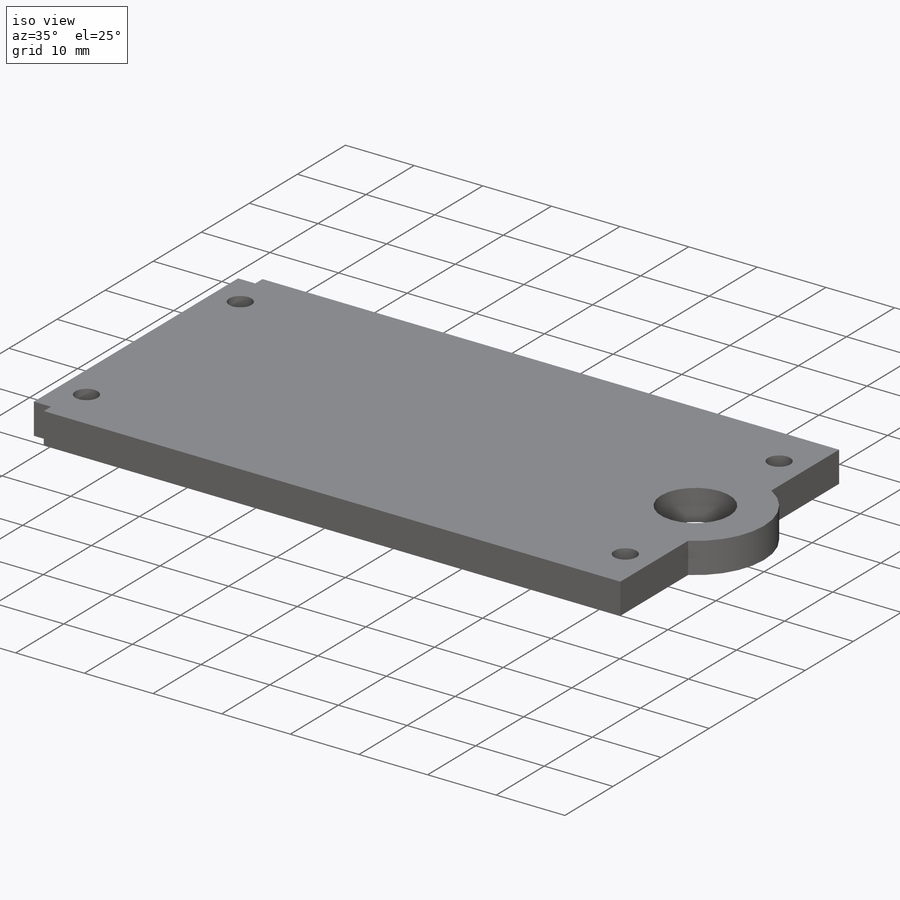
[diagram: iso view]
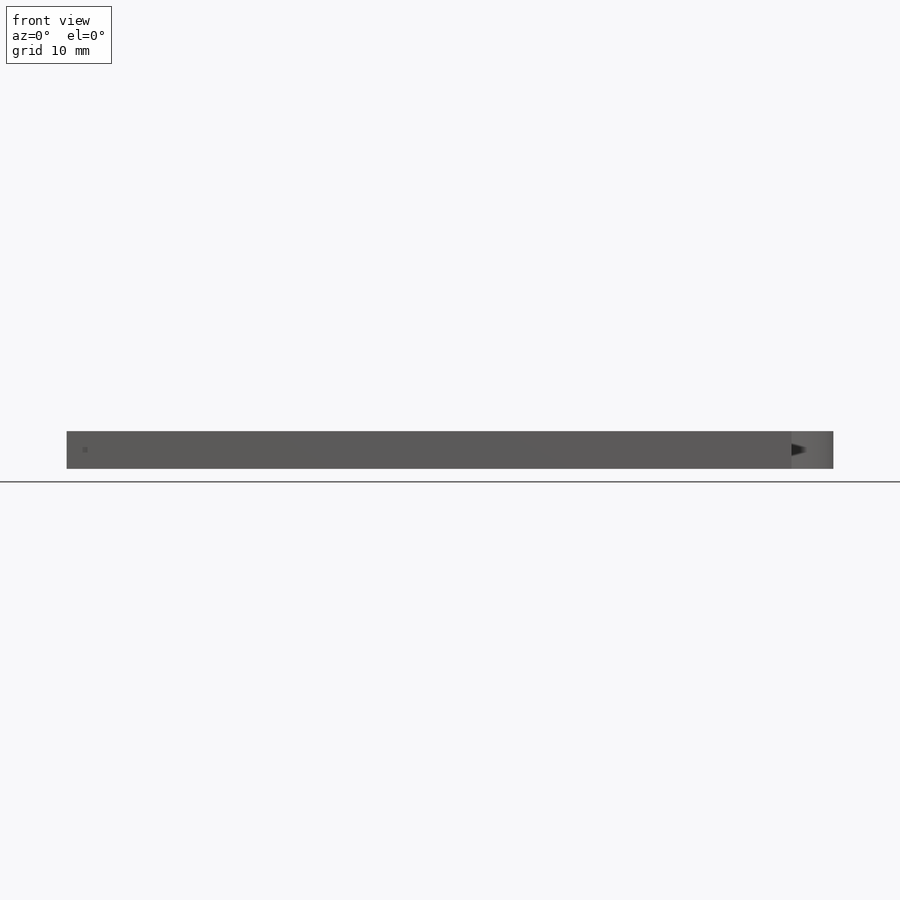
[diagram: front view]
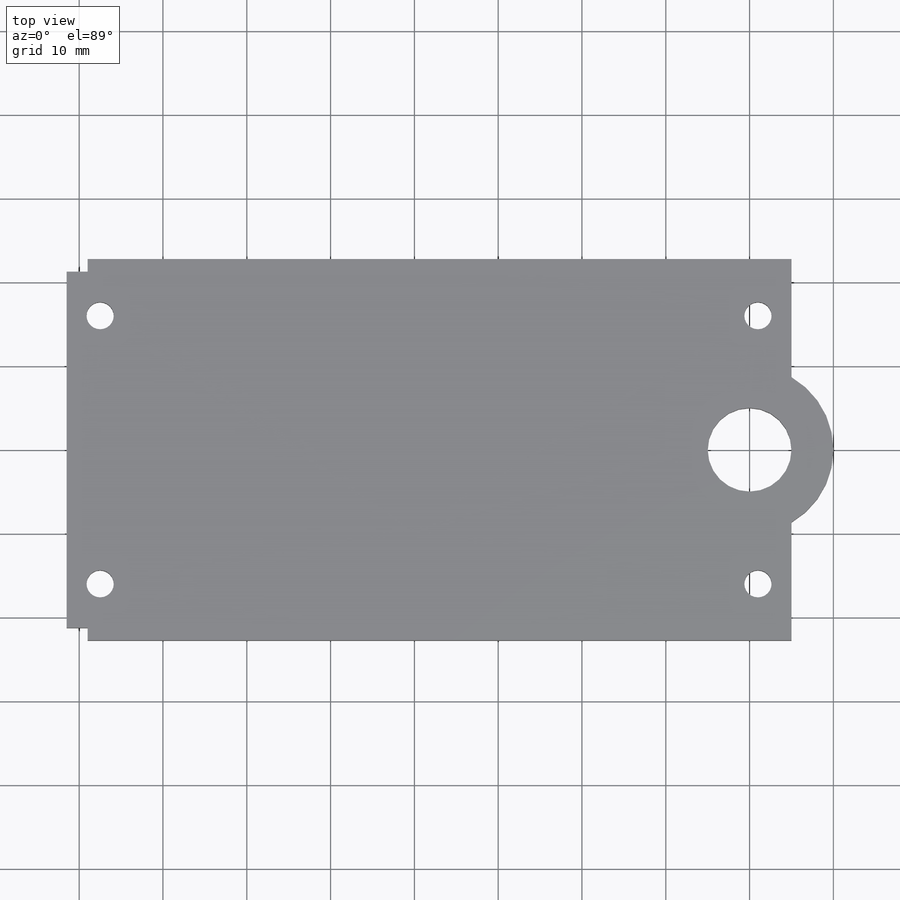
[diagram: top view]
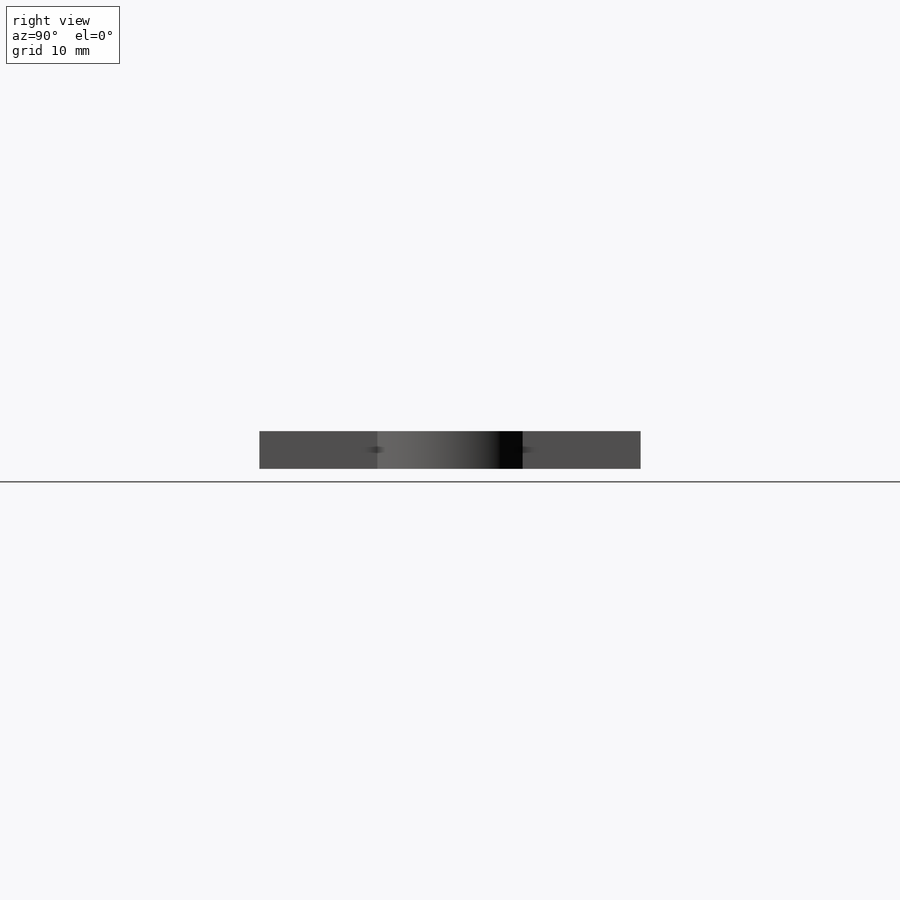
[diagram: right view]
SOLIDWORKS PART (.sldprt)
format: sldprt  version: not decoded by parser v0  size: 360,448 bytes
history: native  units: mm
features: sketch x6, cut_extrude x3, extrude x2, material x1 (+16 scaffold rows collapsed)
feature tree (28):
  scaffold x16  (default folders/planes/origin — collapsed)
  material  "Material <not specified>"
  sketch  "Sketch2"  dims[c1.D1=45.0mm c1.D2=90.0mm c1.D3=45.0mm c1.D4=22.75mm c2.D1=22.75mm c2.D2=41.5mm]
  extrude  "Boss-Extrude1"  Depth=4.5mm
  sketch  "Sketch3"  dims[c1.D5=3.25mm c1.D1=4.0mm c1.D2=6.0mm c1.D3=4.0mm c1.D4=6.0mm c2.D1=16.0mm c2.D2=37.5mm c2.D3=41.0mm]
  cut_extrude  "Cut-Extrude1"  [1 undecoded]
  sketch  "Sketch5"  dims[D1=20.0mm D2=40.0mm]
  extrude  "Boss-Extrude2"  [1 undecoded]
  sketch  "Sketch6"  dims[D1=10.0mm]
  cut_extrude  "Cut-Extrude3"  [1 undecoded]
  sketch  "Sketch7"  dims[D1=2.5mm D2=1.5mm]
  cut_extrude  "Cut-Extrude4"  [1 undecoded]
  sketch  "Sketch4"  dims[D1=2.0mm D2=15.0mm D3=15.0mm]
decode coverage: 7 of 11 modeling features carry decoded parameters
note: 4 parameter values undecoded
summary: no parameter record found for 4 features
note: suppression state not decoded; provenance and decode notes live in map.json
